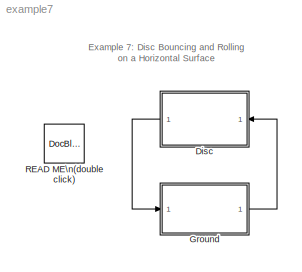
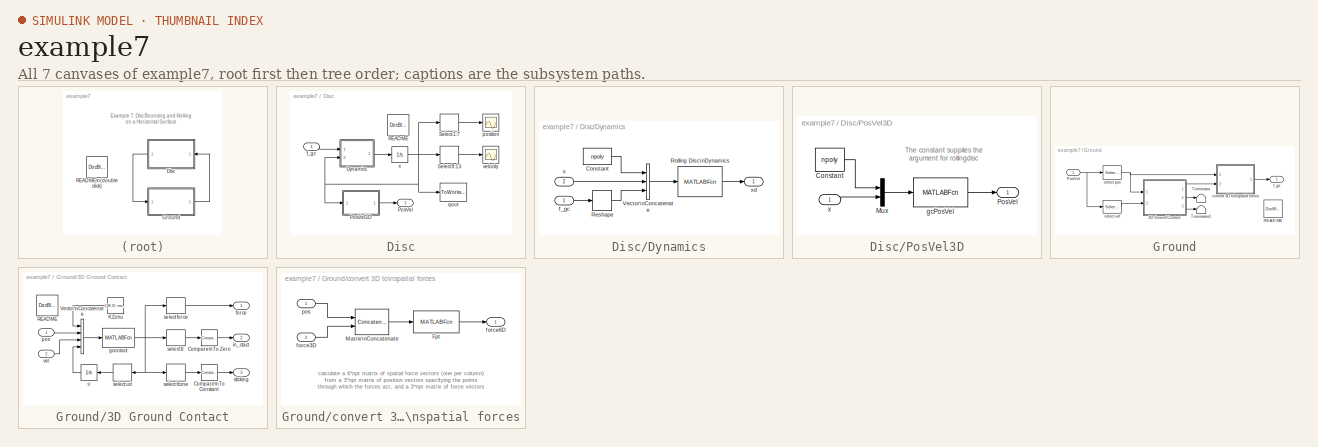
[diagram: thumbnail index - all 7 canvases of the model, root first then tree order]
MODEL example7
KIND model
WORKSPACE source: external: M-Code  (data not in archive)
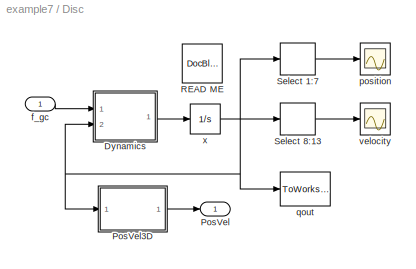
BLOCK [SubSystem] Disc
  FunctionWithSeparateData = off
  MaskHideContents = off
  MinAlgLoopOccurrences = off
  Opaque = off
  Ports = [1, 1]
  PropExecContextOutsideSubsystem = off
  RTWSystemCode = Auto
  RequestExecContextInheritance = off
BLOCK [SubSystem] Disc/Dynamics
  FunctionWithSeparateData = off
  MaskHideContents = off
  MinAlgLoopOccurrences = off
  Opaque = off
  Ports = [2, 1]
  PropExecContextOutsideSubsystem = off
  RTWSystemCode = Auto
  RequestExecContextInheritance = off
BLOCK [Constant] Disc/Dynamics/Constant
  OutDataType = sfix(16)
  OutScaling = 2^0
  Value = npoly
BLOCK [Reshape] Disc/Dynamics/Reshape
  OutputDimensionality = Column vector (2-D)
BLOCK [MATLABFcn] Disc/Dynamics/Rolling Disc\nDynamics
  MATLABFcn = gcFD( rollingdisc(u(1)), @FDfb, u(2:end) )
  Output1D = off
  OutputDimensions = [13 1]
  OutputSignalType = real
  Ports = [1, 1]
BLOCK [Concatenate] Disc/Dynamics/Vector\nConcatenate
  Mode = Vector
  NumInputs = 3
  Ports = [3, 1]
BLOCK [Inport] Disc/Dynamics/f_gc
  IconDisplay = Port number
  OutDataType = sfix(16)
  OutScaling = 2^0
BLOCK [Inport] Disc/Dynamics/x
  IconDisplay = Port number
  OutDataType = sfix(16)
  OutScaling = 2^0
  Port = 2
BLOCK [Outport] Disc/Dynamics/xd
  IconDisplay = Port number
  OutDataType = sfix(16)
  OutScaling = 2^0
BLOCK [Outport] Disc/PosVel
  IconDisplay = Port number
  OutDataType = sfix(16)
  OutScaling = 2^0
BLOCK [SubSystem] Disc/PosVel3D
  FunctionWithSeparateData = off
  MaskHideContents = off
  MinAlgLoopOccurrences = off
  Opaque = off
  Ports = [1, 1]
  PropExecContextOutsideSubsystem = off
  RTWSystemCode = Auto
  RequestExecContextInheritance = off
BLOCK [Constant] Disc/PosVel3D/Constant
  OutDataType = sfix(16)
  OutScaling = 2^0
  Value = npoly
BLOCK [Mux] Disc/PosVel3D/Mux
  DisplayOption = bar
  Inputs = 2
  Ports = [2, 1]
BLOCK [Outport] Disc/PosVel3D/PosVel
  IconDisplay = Port number
  OutDataType = sfix(16)
  OutScaling = 2^0
BLOCK [MATLABFcn] Disc/PosVel3D/gcPosVel
  MATLABFcn = gcPosVel( rollingdisc(u(1)), u(2:end) )
  Output1D = off
  OutputDimensions = [6 npt]
  OutputSignalType = real
  Ports = [1, 1]
BLOCK [Inport] Disc/PosVel3D/x
  IconDisplay = Port number
  OutDataType = sfix(16)
  OutScaling = 2^0
BLOCK [Reference] Disc/READ ME  REF=simulink/Model-Wide\nUtilities/DocBlock
  DocumentType = Text
  FunctionWithSeparateData = off
  Ports = []
  RTWMemSecDataConstants = Inherit from model
  RTWMemSecDataInternal = Inherit from model
  RTWMemSecDataParameters = Inherit from model
  RTWMemSecFuncExecute = Inherit from model
  RTWMemSecFuncInitTerm = Inherit from model
  ShowPortLabels = FromPortIcon
  SourceBlock = simulink/Model-Wide\nUtilities/DocBlock
  SourceType = DocBlock
  SystemSampleTime = -1
  UserData = DataTag0
  UserDataPersistent = on
BLOCK [Selector] Disc/Select 1:7
  IndexOptions = Index vector (dialog)
  Indices = [1 2 3 4 5 6 7]
  InputPortWidth = 13
  OutputSizes = 1
  Ports = [1, 1]
BLOCK [Selector] Disc/Select 8:13
  IndexOptions = Index vector (dialog)
  Indices = [8 9 10 11 12 13]
  InputPortWidth = 13
  OutputSizes = 1
  Ports = [1, 1]
BLOCK [Inport] Disc/f_gc
  IconDisplay = Port number
  OutDataType = sfix(16)
  OutScaling = 2^0
BLOCK [Scope] Disc/position
  DataFormat = StructureWithTime
  Floating = off
  LimitDataPoints = off
  NumInputPorts = 1
  Ports = [1]
  SampleTime = 0
  SaveName = ScopeData1
  YMax = 1.05
  YMin = -1.05
BLOCK [ToWorkspace] Disc/qout
  MaxDataPoints = inf
  SampleTime = -1
  SaveFormat = Array
  VariableName = xout
BLOCK [Scope] Disc/velocity
  DataFormat = StructureWithTime
  Floating = off
  LimitDataPoints = off
  NumInputPorts = 1
  Ports = [1]
  SampleTime = 0
  SaveName = ScopeData2
  YMax = 4
  YMin = -2
BLOCK [Integrator] Disc/x
  InitialCondition = x_init
  Ports = [1, 1]
BLOCK [SubSystem] Ground
  FunctionWithSeparateData = off
  MaskHideContents = off
  MinAlgLoopOccurrences = off
  Opaque = off
  Ports = [1, 1]
  PropExecContextOutsideSubsystem = off
  RTWSystemCode = Auto
  RequestExecContextInheritance = off
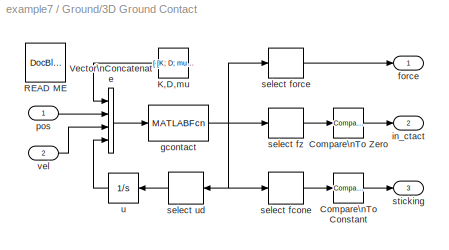
BLOCK [SubSystem] Ground/3D Ground Contact
  FunctionWithSeparateData = off
  MaskCallbackString = |||
  MaskDescription = Given two 3xnp arrays containing contact-point positions and\nvelocities, calculate the 3xnp array of ground-reaction forces\nacting on those points. Also calculate 1xnp boolean vectors\nin_ctact (true if normal force >0) and sticking (true if inside\nor on boundary of friction cone).  Zero-crossing detection is\nenabled at both make/break contact and stick/slip transitions.
  MaskEnableString = on,on,on,on
  MaskHideContents = off
  MaskIconFrame = on
  MaskIconOpaque = on
  MaskIconRotate = none
  MaskIconUnits = autoscale
  MaskPromptString = Stiffness (K)| Damping (D)|Coefficient of Friction (mu)|Number of Contact Points
  MaskStyleString = edit,edit,edit,edit
  MaskTabNameString = ,,,
  MaskToolTipString = on,on,on,on
  MaskTunableValueString = on,on,on,on
  MaskType = 3D Nonlinear Ground Contact with Friction
  MaskValueString = 1e6|2000|0.1|npt
  MaskVarAliasString = ,,,
  MaskVariables = K=@1;D=@2;mu=@3;np=@4;
  MaskVisibilityString = on,on,on,on
  MinAlgLoopOccurrences = off
  Opaque = off
  Ports = [2, 3]
  PropExecContextOutsideSubsystem = off
  RTWSystemCode = Auto
  RequestExecContextInheritance = off
BLOCK [Reference] Ground/3D Ground Contact/Compare\nTo Constant  REF=simulink/Logic and Bit\nOperations/Compare\nTo Constant
  FunctionWithSeparateData = off
  LogicOutDataTypeMode = boolean
  Ports = [1, 1]
  RTWMemSecDataConstants = Inherit from model
  RTWMemSecDataInternal = Inherit from model
  RTWMemSecDataParameters = Inherit from model
  RTWMemSecFuncExecute = Inherit from model
  RTWMemSecFuncInitTerm = Inherit from model
  ShowPortLabels = FromPortIcon
  SourceBlock = simulink/Logic and Bit\nOperations/Compare\nTo Constant
  SourceType = Compare To Constant
  SystemSampleTime = -1
  ZeroCross = on
  const = 1
  relop = <=
BLOCK [Reference] Ground/3D Ground Contact/Compare\nTo Zero  REF=simulink/Logic and Bit\nOperations/Compare\nTo Zero
  FunctionWithSeparateData = off
  LogicOutDataTypeMode = boolean
  Ports = [1, 1]
  RTWMemSecDataConstants = Inherit from model
  RTWMemSecDataInternal = Inherit from model
  RTWMemSecDataParameters = Inherit from model
  RTWMemSecFuncExecute = Inherit from model
  RTWMemSecFuncInitTerm = Inherit from model
  ShowPortLabels = FromPortIcon
  SourceBlock = simulink/Logic and Bit\nOperations/Compare\nTo Zero
  SourceType = Compare To Zero
  SystemSampleTime = -1
  ZeroCross = on
  relop = >
BLOCK [Constant] Ground/3D Ground Contact/K,D,mu
  OutDataType = sfix(16)
  OutScaling = 2^0
  Value = [ [K; D; mu] zeros(3,np-1) ]
  VectorParams1D = off
BLOCK [Reference] Ground/3D Ground Contact/READ ME  REF=simulink/Model-Wide\nUtilities/DocBlock
  DocumentType = Text
  FunctionWithSeparateData = off
  Ports = []
  RTWMemSecDataConstants = Inherit from model
  RTWMemSecDataInternal = Inherit from model
  RTWMemSecDataParameters = Inherit from model
  RTWMemSecFuncExecute = Inherit from model
  RTWMemSecFuncInitTerm = Inherit from model
  ShowPortLabels = FromPortIcon
  SourceBlock = simulink/Model-Wide\nUtilities/DocBlock
  SourceType = DocBlock
  SystemSampleTime = -1
  UserData = DataTag1
  UserDataPersistent = on
BLOCK [Concatenate] Ground/3D Ground Contact/Vector\nConcatenate
  Mode = Multidimensional array
  NumInputs = 4
  Ports = [4, 1]
BLOCK [Outport] Ground/3D Ground Contact/force
  IconDisplay = Port number
  OutDataType = sfix(16)
  OutScaling = 2^0
BLOCK [MATLABFcn] Ground/3D Ground Contact/gcontact
  MATLABFcn = gcontact( u(1,1), u(2,1), u(3,1), u(4:6,:), u(7:9,:), u(10:11,:) )
  Output1D = off
  OutputDimensions = [6 np]
  OutputSignalType = real
  Ports = [1, 1]
BLOCK [Outport] Ground/3D Ground Contact/in_ctact
  IconDisplay = Port number
  OutDataType = sfix(16)
  OutScaling = 2^0
  Port = 2
BLOCK [Inport] Ground/3D Ground Contact/pos
  IconDisplay = Port number
  OutDataType = sfix(16)
  OutScaling = 2^0
BLOCK [Selector] Ground/3D Ground Contact/select fcone
  IndexOptions = Index vector (dialog),Select all
  Indices = [6],1
  InputPortWidth = 3
  NumberOfDimensions = 2
  OutputSizes = 1,1
  Ports = [1, 1]
BLOCK [Selector] Ground/3D Ground Contact/select force
  IndexOptions = Index vector (dialog),Select all
  Indices = [1 2 3],1
  InputPortWidth = 3
  NumberOfDimensions = 2
  OutputSizes = 1,1
  Ports = [1, 1]
BLOCK [Selector] Ground/3D Ground Contact/select fz
  IndexOptions = Index vector (dialog),Select all
  Indices = [3],1
  InputPortWidth = 3
  NumberOfDimensions = 2
  OutputSizes = 1,1
  Ports = [1, 1]
BLOCK [Selector] Ground/3D Ground Contact/select ud
  IndexOptions = Index vector (dialog),Select all
  Indices = [4 5],1
  InputPortWidth = 3
  NumberOfDimensions = 2
  OutputSizes = 1,1
  Ports = [1, 1]
BLOCK [Outport] Ground/3D Ground Contact/sticking
  IconDisplay = Port number
  OutDataType = sfix(16)
  OutScaling = 2^0
  Port = 3
BLOCK [Integrator] Ground/3D Ground Contact/u
  Ports = [1, 1]
BLOCK [Inport] Ground/3D Ground Contact/vel
  IconDisplay = Port number
  OutDataType = sfix(16)
  OutScaling = 2^0
  Port = 2
BLOCK [Inport] Ground/PosVel
  IconDisplay = Port number
  OutDataType = sfix(16)
  OutScaling = 2^0
BLOCK [Reference] Ground/READ ME  REF=simulink/Model-Wide\nUtilities/DocBlock
  DocumentType = Text
  FunctionWithSeparateData = off
  Ports = []
  RTWMemSecDataConstants = Inherit from model
  RTWMemSecDataInternal = Inherit from model
  RTWMemSecDataParameters = Inherit from model
  RTWMemSecFuncExecute = Inherit from model
  RTWMemSecFuncInitTerm = Inherit from model
  ShowPortLabels = FromPortIcon
  SourceBlock = simulink/Model-Wide\nUtilities/DocBlock
  SourceType = DocBlock
  SystemSampleTime = -1
  UserData = DataTag2
  UserDataPersistent = on
BLOCK [Terminator] Ground/Terminator
BLOCK [Terminator] Ground/Terminator1
BLOCK [SubSystem] Ground/convert 3D to\nspatial forces
  FunctionWithSeparateData = off
  MaskHideContents = off
  MinAlgLoopOccurrences = off
  Opaque = off
  Ports = [2, 1]
  PropExecContextOutsideSubsystem = off
  RTWSystemCode = Auto
  RequestExecContextInheritance = off
BLOCK [MATLABFcn] Ground/convert 3D to\nspatial forces/Fpt
  MATLABFcn = Fpt( u(4:6,:), u(1:3,:) )
  Output1D = off
  OutputSignalType = real
  Ports = [1, 1]
BLOCK [Concatenate] Ground/convert 3D to\nspatial forces/Matrix\nConcatenate
  Mode = Multidimensional array
  Ports = [2, 1]
BLOCK [Inport] Ground/convert 3D to\nspatial forces/force3D
  IconDisplay = Port number
  OutDataType = sfix(16)
  OutScaling = 2^0
  Port = 2
BLOCK [Outport] Ground/convert 3D to\nspatial forces/force6D
  IconDisplay = Port number
  OutDataType = sfix(16)
  OutScaling = 2^0
BLOCK [Inport] Ground/convert 3D to\nspatial forces/pos
  IconDisplay = Port number
  OutDataType = sfix(16)
  OutScaling = 2^0
BLOCK [Outport] Ground/f_gc
  IconDisplay = Port number
  OutDataType = sfix(16)
  OutScaling = 2^0
BLOCK [Selector] Ground/select pos
  IndexOptions = Index vector (dialog),Select all
  Indices = [1 2 3],1
  InputPortWidth = 3
  NumberOfDimensions = 2
  OutputSizes = 1,1
  Ports = [1, 1]
BLOCK [Selector] Ground/select vel
  IndexOptions = Index vector (dialog),Select all
  Indices = [4 5 6],1
  InputPortWidth = 3
  NumberOfDimensions = 2
  OutputSizes = 1,1
  Ports = [1, 1]
BLOCK [Reference] READ ME\n(double click)  REF=simulink/Model-Wide\nUtilities/DocBlock
  DocumentType = Text
  FunctionWithSeparateData = off
  Ports = []
  RTWMemSecDataConstants = Inherit from model
  RTWMemSecDataInternal = Inherit from model
  RTWMemSecDataParameters = Inherit from model
  RTWMemSecFuncExecute = Inherit from model
  RTWMemSecFuncInitTerm = Inherit from model
  ShowPortLabels = FromPortIcon
  SourceBlock = simulink/Model-Wide\nUtilities/DocBlock
  SourceType = DocBlock
  SystemSampleTime = -1
  UserData = DataTag3
  UserDataPersistent = on
ANNOTATION (root): Example 7: Disc Bouncing and Rolling\non a Horizontal Surface
ANNOTATION Disc/PosVel3D: The constant supplies the\nargument for rollingdisc
ANNOTATION Ground/convert 3D to\nspatial forces: calculate a 6*npt matrix of spatial force vectors (one per column)\nfrom a 3*npt matrix of position vectors specifying the points\nthrough which the forces act, and a 3*npt matrix of force vectors
LINE Disc/Dynamics/Constant:1 -> Disc/Dynamics/Vector\nConcatenate:1
LINE Disc/Dynamics/Reshape:1 -> Disc/Dynamics/Vector\nConcatenate:3
LINE Disc/Dynamics/Rolling Disc\nDynamics:1 -> Disc/Dynamics/xd:1
LINE Disc/Dynamics/Vector\nConcatenate:1 -> Disc/Dynamics/Rolling Disc\nDynamics:1
LINE Disc/Dynamics/f_gc:1 -> Disc/Dynamics/Reshape:1
LINE Disc/Dynamics/x:1 -> Disc/Dynamics/Vector\nConcatenate:2
LINE Disc/Dynamics:1 -> Disc/x:1
LINE Disc/PosVel3D/Constant:1 -> Disc/PosVel3D/Mux:1
LINE Disc/PosVel3D/Mux:1 -> Disc/PosVel3D/gcPosVel:1
LINE Disc/PosVel3D/gcPosVel:1 -> Disc/PosVel3D/PosVel:1
LINE Disc/PosVel3D/x:1 -> Disc/PosVel3D/Mux:2
LINE Disc/PosVel3D:1 -> Disc/PosVel:1
LINE Disc/Select 1:7:1 -> Disc/position:1
LINE Disc/Select 8:13:1 -> Disc/velocity:1
LINE Disc/f_gc:1 -> Disc/Dynamics:1
NET Disc/x:1 -> Disc/Dynamics:2, Disc/PosVel3D:1, Disc/Select 1:7:1, Disc/Select 8:13:1, Disc/qout:1
LINE Disc:1 -> Ground:1
LINE Ground/3D Ground Contact/Compare\nTo Constant:1 -> Ground/3D Ground Contact/sticking:1
LINE Ground/3D Ground Contact/Compare\nTo Zero:1 -> Ground/3D Ground Contact/in_ctact:1
LINE Ground/3D Ground Contact/K,D,mu:1 -> Ground/3D Ground Contact/Vector\nConcatenate:1
LINE Ground/3D Ground Contact/Vector\nConcatenate:1 -> Ground/3D Ground Contact/gcontact:1
NET Ground/3D Ground Contact/gcontact:1 -> Ground/3D Ground Contact/select fcone:1, Ground/3D Ground Contact/select force:1, Ground/3D Ground Contact/select fz:1, Ground/3D Ground Contact/select ud:1
LINE Ground/3D Ground Contact/pos:1 -> Ground/3D Ground Contact/Vector\nConcatenate:2
LINE Ground/3D Ground Contact/select fcone:1 -> Ground/3D Ground Contact/Compare\nTo Constant:1
LINE Ground/3D Ground Contact/select force:1 -> Ground/3D Ground Contact/force:1
LINE Ground/3D Ground Contact/select fz:1 -> Ground/3D Ground Contact/Compare\nTo Zero:1
LINE Ground/3D Ground Contact/select ud:1 -> Ground/3D Ground Contact/u:1
LINE Ground/3D Ground Contact/u:1 -> Ground/3D Ground Contact/Vector\nConcatenate:4
LINE Ground/3D Ground Contact/vel:1 -> Ground/3D Ground Contact/Vector\nConcatenate:3
LINE Ground/3D Ground Contact:1 -> Ground/convert 3D to\nspatial forces:2
LINE Ground/3D Ground Contact:2 -> Ground/Terminator:1
LINE Ground/3D Ground Contact:3 -> Ground/Terminator1:1
NET Ground/PosVel:1 -> Ground/select pos:1, Ground/select vel:1
LINE Ground/convert 3D to\nspatial forces/Fpt:1 -> Ground/convert 3D to\nspatial forces/force6D:1
LINE Ground/convert 3D to\nspatial forces/Matrix\nConcatenate:1 -> Ground/convert 3D to\nspatial forces/Fpt:1
LINE Ground/convert 3D to\nspatial forces/force3D:1 -> Ground/convert 3D to\nspatial forces/Matrix\nConcatenate:2
LINE Ground/convert 3D to\nspatial forces/pos:1 -> Ground/convert 3D to\nspatial forces/Matrix\nConcatenate:1
LINE Ground/convert 3D to\nspatial forces:1 -> Ground/f_gc:1
NET Ground/select pos:1 -> Ground/3D Ground Contact:1, Ground/convert 3D to\nspatial forces:1
LINE Ground/select vel:1 -> Ground/3D Ground Contact:2
LINE Ground:1 -> Disc:1
note: NET lines group one-source signal fan-out (src -> all destinations, sorted); 1:1 wires keep LINE
